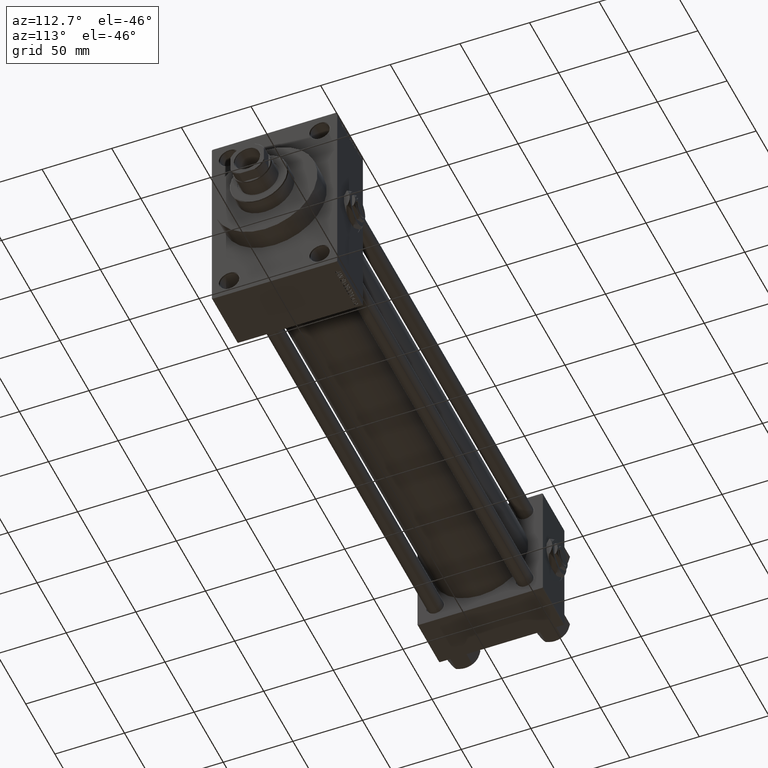
[diagram: clean part render]
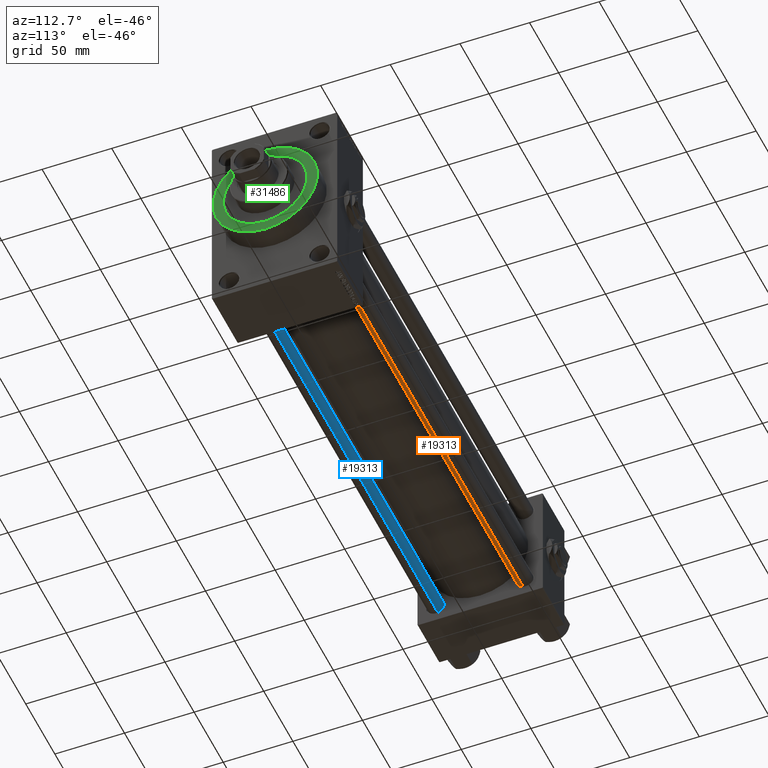
[diagram: same view with three faces highlighted in distinct colors, each labeled with its STEP entity id]
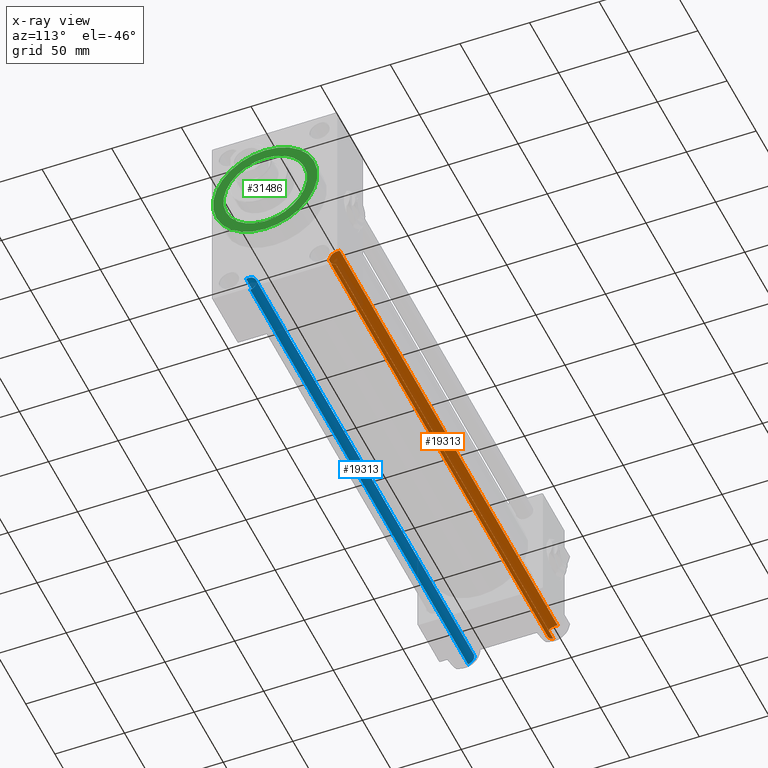
[diagram: x-ray of the same camera — body ghosted, the three highlighted faces saturated]
A machine part, auxiliary view with three faces highlighted in distinct colors.
The next image is the same camera in x-ray (body ghosted, the three faces saturated) — at least one of them is partly hidden behind the body in this view.
Their STEP definitions:

[orange] entity #19313 — the highlighted cylindrical surface (edge-blend (fillet) strip) has radius 6 mm, axis along (1, -0, 0).
#1268 = EDGE_LOOP ( 'NONE', ( #37191, #28672, #2480, #33585 ) ) ;
#1434 = DIRECTION ( 'NONE',  ( -0.000000000000000000, -0.000000000000000000, -1.000000000000000000 ) ) ;
#2480 = ORIENTED_EDGE ( 'NONE', *, *, #15538, .T. ) ;
#2865 = VERTEX_POINT ( 'NONE', #5706 ) ;
#5706 = CARTESIAN_POINT ( 'NONE',  ( 6.000000000000000888, 7.347880794884120722E-16, 0.5000000000000559552 ) ) ;
#6623 = DIRECTION ( 'NONE',  ( -0.000000000000000000, -0.000000000000000000, -1.000000000000000000 ) ) ;
#8806 = CARTESIAN_POINT ( 'NONE',  ( -6.000000000000000888, 0.000000000000000000, 374.5000000000000000 ) ) ;
#10601 = AXIS2_PLACEMENT_3D ( 'NONE', #43053, #42066, #26862 ) ;
#12704 = CARTESIAN_POINT ( 'NONE',  ( 6.000000000000000888, 7.347880794884120722E-16, 374.5000000000000000 ) ) ;
#14022 = CARTESIAN_POINT ( 'NONE',  ( 0.000000000000000000, 0.000000000000000000, 0.5000000000000559552 ) ) ;
#15538 = EDGE_CURVE ( 'NONE', #21029, #23963, #20381, .T. ) ;
#16190 = VERTEX_POINT ( 'NONE', #12704 ) ;
#18737 = CIRCLE ( 'NONE', #48977, 6.000000000000000888 ) ;
#19313 = ADVANCED_FACE ( 'NONE', ( #20845 ), #36782, .T. ) ;
#20381 = LINE ( 'NONE', #35086, #20947 ) ;
#20845 = FACE_OUTER_BOUND ( 'NONE', #1268, .T. ) ;
#20947 = VECTOR ( 'NONE', #1434, 1000.000000000000000 ) ;
#21029 = VERTEX_POINT ( 'NONE', #8806 ) ;
#23963 = VERTEX_POINT ( 'NONE', #29858 ) ;
#25308 = CARTESIAN_POINT ( 'NONE',  ( 0.000000000000000000, 0.000000000000000000, 375.0000000000000000 ) ) ;
#25484 = DIRECTION ( 'NONE',  ( 1.000000000000000000, 0.000000000000000000, 0.000000000000000000 ) ) ;
#25720 = CIRCLE ( 'NONE', #10601, 6.000000000000000888 ) ;
#26862 = DIRECTION ( 'NONE',  ( 1.000000000000000000, 0.000000000000000000, 0.000000000000000000 ) ) ;
#28672 = ORIENTED_EDGE ( 'NONE', *, *, #36799, .T. ) ;
#29196 = VECTOR ( 'NONE', #33966, 1000.000000000000000 ) ;
#29222 = DIRECTION ( 'NONE',  ( -0.000000000000000000, -0.000000000000000000, 1.000000000000000000 ) ) ;
#29858 = CARTESIAN_POINT ( 'NONE',  ( -6.000000000000000888, 0.000000000000000000, 0.5000000000000559552 ) ) ;
#33585 = ORIENTED_EDGE ( 'NONE', *, *, #42158, .T. ) ;
#33966 = DIRECTION ( 'NONE',  ( -0.000000000000000000, -0.000000000000000000, -1.000000000000000000 ) ) ;
#35086 = CARTESIAN_POINT ( 'NONE',  ( -6.000000000000000888, 0.000000000000000000, 375.0000000000000000 ) ) ;
#36288 = DIRECTION ( 'NONE',  ( -1.000000000000000000, 0.000000000000000000, 0.000000000000000000 ) ) ;
#36782 = CYLINDRICAL_SURFACE ( 'NONE', #48899, 6.000000000000000888 ) ;
#36799 = EDGE_CURVE ( 'NONE', #16190, #21029, #25720, .T. ) ;
#37191 = ORIENTED_EDGE ( 'NONE', *, *, #45206, .F. ) ;
#41690 = LINE ( 'NONE', #48923, #29196 ) ;
#42066 = DIRECTION ( 'NONE',  ( 0.000000000000000000, 0.000000000000000000, -1.000000000000000000 ) ) ;
#42158 = EDGE_CURVE ( 'NONE', #23963, #2865, #18737, .T. ) ;
#43053 = CARTESIAN_POINT ( 'NONE',  ( 0.000000000000000000, 0.000000000000000000, 374.5000000000000000 ) ) ;
#45206 = EDGE_CURVE ( 'NONE', #16190, #2865, #41690, .T. ) ;
#48899 = AXIS2_PLACEMENT_3D ( 'NONE', #25308, #6623, #36288 ) ;
#48923 = CARTESIAN_POINT ( 'NONE',  ( 6.000000000000000888, 7.347880794884120722E-16, 375.0000000000000000 ) ) ;
#48977 = AXIS2_PLACEMENT_3D ( 'NONE', #14022, #29222, #25484 ) ;

[blue] entity #19313 — the highlighted cylindrical surface (edge-blend (fillet) strip) has radius 6 mm, axis along (-1, 0, 0).
#1268 = EDGE_LOOP ( 'NONE', ( #37191, #28672, #2480, #33585 ) ) ;
#1434 = DIRECTION ( 'NONE',  ( -0.000000000000000000, -0.000000000000000000, -1.000000000000000000 ) ) ;
#2480 = ORIENTED_EDGE ( 'NONE', *, *, #15538, .T. ) ;
#2865 = VERTEX_POINT ( 'NONE', #5706 ) ;
#5706 = CARTESIAN_POINT ( 'NONE',  ( 6.000000000000000888, 7.347880794884120722E-16, 0.5000000000000559552 ) ) ;
#6623 = DIRECTION ( 'NONE',  ( -0.000000000000000000, -0.000000000000000000, -1.000000000000000000 ) ) ;
#8806 = CARTESIAN_POINT ( 'NONE',  ( -6.000000000000000888, 0.000000000000000000, 374.5000000000000000 ) ) ;
#10601 = AXIS2_PLACEMENT_3D ( 'NONE', #43053, #42066, #26862 ) ;
#12704 = CARTESIAN_POINT ( 'NONE',  ( 6.000000000000000888, 7.347880794884120722E-16, 374.5000000000000000 ) ) ;
#14022 = CARTESIAN_POINT ( 'NONE',  ( 0.000000000000000000, 0.000000000000000000, 0.5000000000000559552 ) ) ;
#15538 = EDGE_CURVE ( 'NONE', #21029, #23963, #20381, .T. ) ;
#16190 = VERTEX_POINT ( 'NONE', #12704 ) ;
#18737 = CIRCLE ( 'NONE', #48977, 6.000000000000000888 ) ;
#19313 = ADVANCED_FACE ( 'NONE', ( #20845 ), #36782, .T. ) ;
#20381 = LINE ( 'NONE', #35086, #20947 ) ;
#20845 = FACE_OUTER_BOUND ( 'NONE', #1268, .T. ) ;
#20947 = VECTOR ( 'NONE', #1434, 1000.000000000000000 ) ;
#21029 = VERTEX_POINT ( 'NONE', #8806 ) ;
#23963 = VERTEX_POINT ( 'NONE', #29858 ) ;
#25308 = CARTESIAN_POINT ( 'NONE',  ( 0.000000000000000000, 0.000000000000000000, 375.0000000000000000 ) ) ;
#25484 = DIRECTION ( 'NONE',  ( 1.000000000000000000, 0.000000000000000000, 0.000000000000000000 ) ) ;
#25720 = CIRCLE ( 'NONE', #10601, 6.000000000000000888 ) ;
#26862 = DIRECTION ( 'NONE',  ( 1.000000000000000000, 0.000000000000000000, 0.000000000000000000 ) ) ;
#28672 = ORIENTED_EDGE ( 'NONE', *, *, #36799, .T. ) ;
#29196 = VECTOR ( 'NONE', #33966, 1000.000000000000000 ) ;
#29222 = DIRECTION ( 'NONE',  ( -0.000000000000000000, -0.000000000000000000, 1.000000000000000000 ) ) ;
#29858 = CARTESIAN_POINT ( 'NONE',  ( -6.000000000000000888, 0.000000000000000000, 0.5000000000000559552 ) ) ;
#33585 = ORIENTED_EDGE ( 'NONE', *, *, #42158, .T. ) ;
#33966 = DIRECTION ( 'NONE',  ( -0.000000000000000000, -0.000000000000000000, -1.000000000000000000 ) ) ;
#35086 = CARTESIAN_POINT ( 'NONE',  ( -6.000000000000000888, 0.000000000000000000, 375.0000000000000000 ) ) ;
#36288 = DIRECTION ( 'NONE',  ( -1.000000000000000000, 0.000000000000000000, 0.000000000000000000 ) ) ;
#36782 = CYLINDRICAL_SURFACE ( 'NONE', #48899, 6.000000000000000888 ) ;
#36799 = EDGE_CURVE ( 'NONE', #16190, #21029, #25720, .T. ) ;
#37191 = ORIENTED_EDGE ( 'NONE', *, *, #45206, .F. ) ;
#41690 = LINE ( 'NONE', #48923, #29196 ) ;
#42066 = DIRECTION ( 'NONE',  ( 0.000000000000000000, 0.000000000000000000, -1.000000000000000000 ) ) ;
#42158 = EDGE_CURVE ( 'NONE', #23963, #2865, #18737, .T. ) ;
#43053 = CARTESIAN_POINT ( 'NONE',  ( 0.000000000000000000, 0.000000000000000000, 374.5000000000000000 ) ) ;
#45206 = EDGE_CURVE ( 'NONE', #16190, #2865, #41690, .T. ) ;
#48899 = AXIS2_PLACEMENT_3D ( 'NONE', #25308, #6623, #36288 ) ;
#48923 = CARTESIAN_POINT ( 'NONE',  ( 6.000000000000000888, 7.347880794884120722E-16, 375.0000000000000000 ) ) ;
#48977 = AXIS2_PLACEMENT_3D ( 'NONE', #14022, #29222, #25484 ) ;

[green] entity #31486 — the highlighted planar face has unit normal (1, 0, 0).
#259 = CARTESIAN_POINT ( 'NONE',  ( 406.0000000000000000, 0.000000000000000000, 0.000000000000000000 ) ) ;
#1316 = CIRCLE ( 'NONE', #17251, 37.50000000000000711 ) ;
#2748 = VERTEX_POINT ( 'NONE', #23429 ) ;
#3214 = DIRECTION ( 'NONE',  ( 0.000000000000000000, 0.000000000000000000, -1.000000000000000000 ) ) ;
#3498 = DIRECTION ( 'NONE',  ( 0.000000000000000000, 0.000000000000000000, -1.000000000000000000 ) ) ;
#3957 = CARTESIAN_POINT ( 'NONE',  ( 406.0000000000000000, 0.000000000000000000, 0.000000000000000000 ) ) ;
#4602 = ORIENTED_EDGE ( 'NONE', *, *, #36238, .F. ) ;
#7952 = FACE_BOUND ( 'NONE', #41316, .T. ) ;
#8707 = AXIS2_PLACEMENT_3D ( 'NONE', #26504, #12036, #27251 ) ;
#9643 = ORIENTED_EDGE ( 'NONE', *, *, #24524, .F. ) ;
#10844 = DIRECTION ( 'NONE',  ( 1.000000000000000000, 0.000000000000000000, 0.000000000000000000 ) ) ;
#12036 = DIRECTION ( 'NONE',  ( 1.000000000000000000, 0.000000000000000000, 0.000000000000000000 ) ) ;
#13252 = CARTESIAN_POINT ( 'NONE',  ( 406.0000000000000000, 0.000000000000000000, -30.00000000000000000 ) ) ;
#13520 = VERTEX_POINT ( 'NONE', #21045 ) ;
#14925 = VERTEX_POINT ( 'NONE', #20742 ) ;
#14985 = VERTEX_POINT ( 'NONE', #13252 ) ;
#17251 = AXIS2_PLACEMENT_3D ( 'NONE', #25801, #10844, #41010 ) ;
#20742 = CARTESIAN_POINT ( 'NONE',  ( 406.0000000000000000, 4.592425496802575156E-15, -37.50000000000000711 ) ) ;
#21045 = CARTESIAN_POINT ( 'NONE',  ( 406.0000000000000000, 0.000000000000000000, 37.50000000000000711 ) ) ;
#23429 = CARTESIAN_POINT ( 'NONE',  ( 406.0000000000000000, 3.673940397442059178E-15, 30.00000000000000000 ) ) ;
#24524 = EDGE_CURVE ( 'NONE', #14985, #2748, #35722, .T. ) ;
#25801 = CARTESIAN_POINT ( 'NONE',  ( 406.0000000000000000, 0.000000000000000000, 0.000000000000000000 ) ) ;
#26385 = FACE_OUTER_BOUND ( 'NONE', #31736, .T. ) ;
#26504 = CARTESIAN_POINT ( 'NONE',  ( 406.0000000000000000, 0.000000000000000000, 0.000000000000000000 ) ) ;
#27251 = DIRECTION ( 'NONE',  ( 0.000000000000000000, 0.000000000000000000, -1.000000000000000000 ) ) ;
#29895 = EDGE_CURVE ( 'NONE', #14925, #13520, #48635, .T. ) ;
#31486 = ADVANCED_FACE ( 'NONE', ( #7952, #26385 ), #48830, .T. ) ;
#31736 = EDGE_LOOP ( 'NONE', ( #48348, #42506 ) ) ;
#32005 = AXIS2_PLACEMENT_3D ( 'NONE', #3957, #34372, #3214 ) ;
#32035 = DIRECTION ( 'NONE',  ( 0.000000000000000000, 0.000000000000000000, -1.000000000000000000 ) ) ;
#33502 = AXIS2_PLACEMENT_3D ( 'NONE', #47251, #43509, #32035 ) ;
#34146 = DIRECTION ( 'NONE',  ( 1.000000000000000000, 0.000000000000000000, 0.000000000000000000 ) ) ;
#34372 = DIRECTION ( 'NONE',  ( 1.000000000000000000, 0.000000000000000000, 0.000000000000000000 ) ) ;
#35722 = CIRCLE ( 'NONE', #8707, 30.00000000000000000 ) ;
#36238 = EDGE_CURVE ( 'NONE', #2748, #14985, #47170, .T. ) ;
#41010 = DIRECTION ( 'NONE',  ( 0.000000000000000000, 0.000000000000000000, -1.000000000000000000 ) ) ;
#41316 = EDGE_LOOP ( 'NONE', ( #9643, #4602 ) ) ;
#42506 = ORIENTED_EDGE ( 'NONE', *, *, #29895, .T. ) ;
#43509 = DIRECTION ( 'NONE',  ( 1.000000000000000000, 0.000000000000000000, 0.000000000000000000 ) ) ;
#43968 = EDGE_CURVE ( 'NONE', #13520, #14925, #1316, .T. ) ;
#47170 = CIRCLE ( 'NONE', #47996, 30.00000000000000000 ) ;
#47251 = CARTESIAN_POINT ( 'NONE',  ( 406.0000000000000000, 0.000000000000000000, 0.000000000000000000 ) ) ;
#47996 = AXIS2_PLACEMENT_3D ( 'NONE', #259, #34146, #3498 ) ;
#48348 = ORIENTED_EDGE ( 'NONE', *, *, #43968, .T. ) ;
#48635 = CIRCLE ( 'NONE', #33502, 37.50000000000000711 ) ;
#48830 = PLANE ( 'NONE',  #32005 ) ;